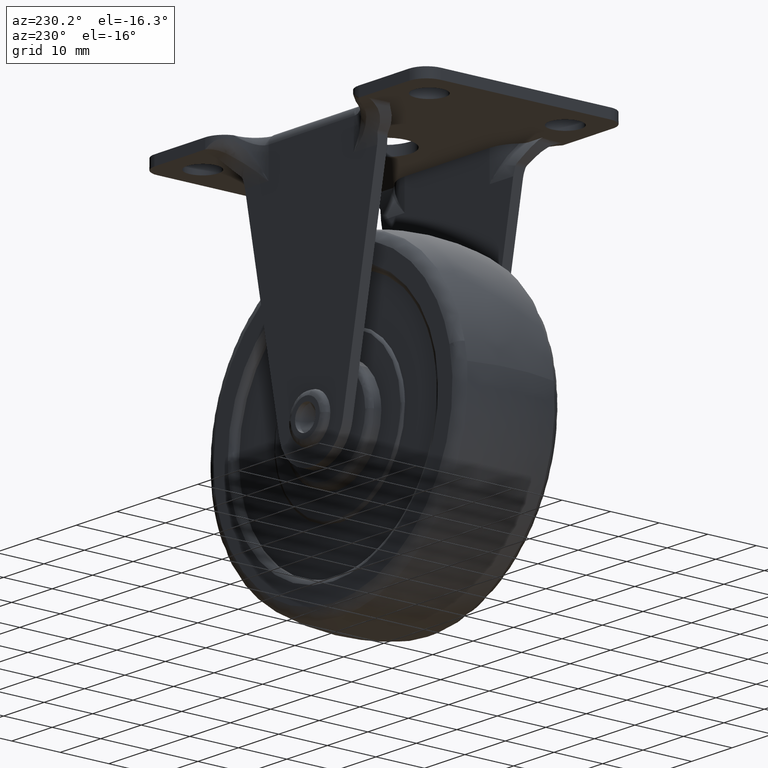
[diagram: clean part render]
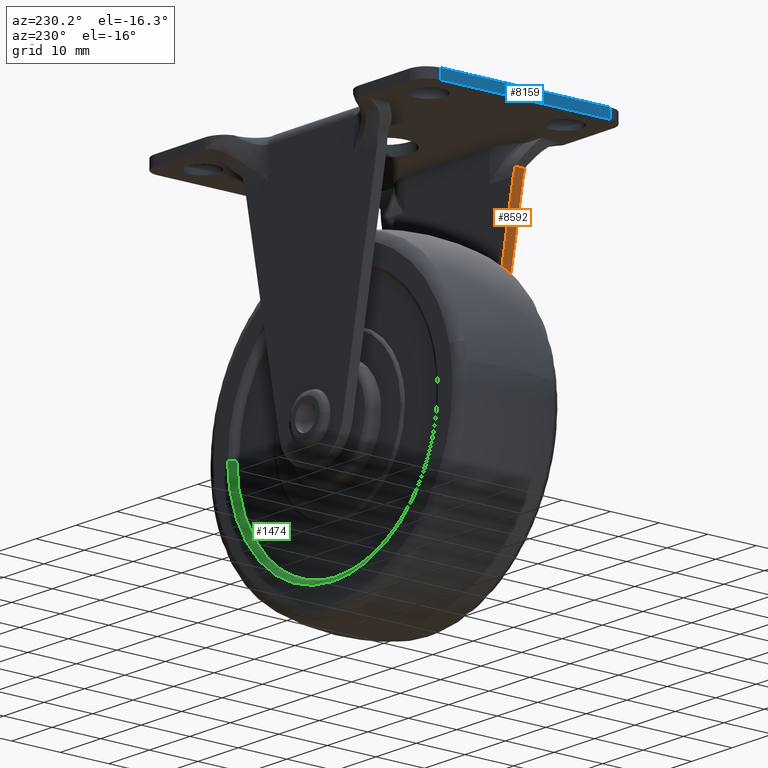
[diagram: same view with three faces highlighted in distinct colors, each labeled with its STEP entity id]
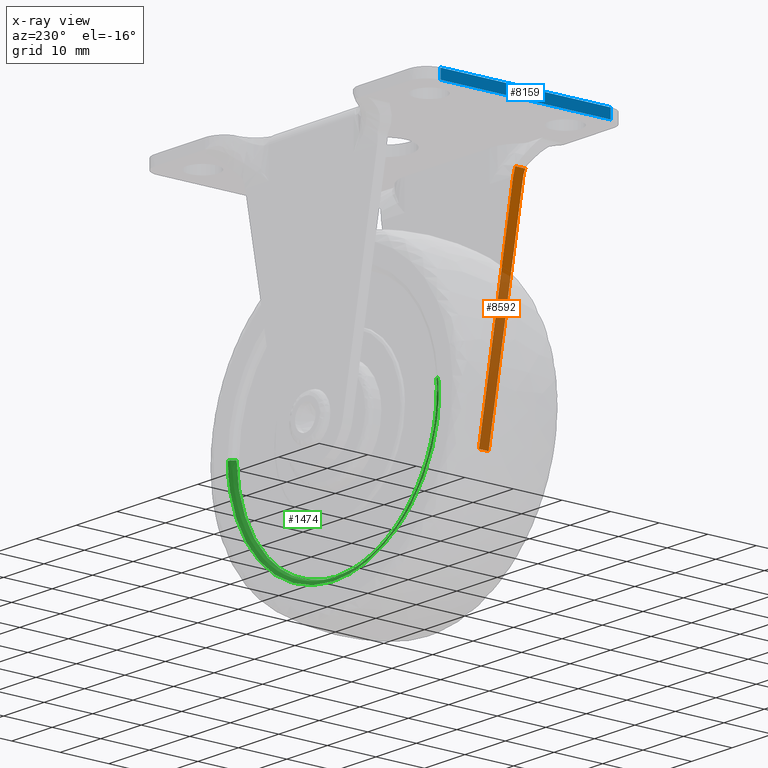
[diagram: x-ray of the same camera — body ghosted, the three highlighted faces saturated]
A machine part, auxiliary view with three faces highlighted in distinct colors.
The next image is the same camera in x-ray (body ghosted, the three faces saturated) — at least one of them is partly hidden behind the body in this view.
Their STEP definitions:

[orange] entity #8592 — the highlighted face is a freeform B-spline surface patch.
#5566=CARTESIAN_POINT('',(-16.650047701181901,-13.162633860607979,48.104896257429601));
#5567=VERTEX_POINT('',#5566);
#5578=CARTESIAN_POINT('',(-16.650047701181901,-15.218624038960201,48.104896257429601));
#5579=VERTEX_POINT('',#5578);
#5580=CARTESIAN_POINT('',(-16.650047701181901,-15.218624038960201,48.104896257429601));
#5581=CARTESIAN_POINT('',(-16.650047701181901,-13.162633860607979,48.104896257429601));
#5582=QUASI_UNIFORM_CURVE('',1,(#5580,#5581),.UNSPECIFIED.,.F.,.U.);
#5583=EDGE_CURVE('',#5579,#5567,#5582,.T.);
#6992=CARTESIAN_POINT('',(-16.333717015647000,-13.0,46.500000000000000));
#6993=VERTEX_POINT('',#6992);
#6994=CARTESIAN_POINT('',(-7.848986975766269,-13.0,3.452937152455845));
#6995=VERTEX_POINT('',#6994);
#6996=CARTESIAN_POINT('',(-16.333717015647000,-13.0,46.500000000000000));
#6997=CARTESIAN_POINT('',(-7.848986975766269,-13.0,3.452937152455845));
#6998=QUASI_UNIFORM_CURVE('',1,(#6996,#6997),.UNSPECIFIED.,.F.,.U.);
#6999=EDGE_CURVE('',#6993,#6995,#6998,.T.);
#7310=CARTESIAN_POINT('',(-16.650047701181901,-13.162633860607979,48.104896257429601));
#7311=CARTESIAN_POINT('',(-16.545989996615571,-13.054506272792141,47.576961952438367));
#7312=CARTESIAN_POINT('',(-16.439854725639080,-12.999952872504190,47.038487163363172));
#7313=CARTESIAN_POINT('',(-16.333717015647000,-13.0,46.500000000000000));
#7314=B_SPLINE_CURVE_WITH_KNOTS('',3,(#7310,#7311,#7312,#7313),.UNSPECIFIED.,.F.,.U.,(4,4),(7.088654E-010,1.646544176419899),.UNSPECIFIED.);
#7315=EDGE_CURVE('',#5567,#6993,#7314,.T.);
#7836=CARTESIAN_POINT('',(-16.333717015647000,-15.0,46.500000000000000));
#7837=VERTEX_POINT('',#7836);
#7843=CARTESIAN_POINT('',(-7.848986975766269,-15.0,3.452937152455845));
#7844=VERTEX_POINT('',#7843);
#7845=CARTESIAN_POINT('',(-16.333717015647000,-15.0,46.500000000000000));
#7846=CARTESIAN_POINT('',(-7.848986975766269,-15.0,3.452937152455845));
#7847=QUASI_UNIFORM_CURVE('',1,(#7845,#7846),.UNSPECIFIED.,.F.,.U.);
#7848=EDGE_CURVE('',#7837,#7844,#7847,.T.);
#8454=CARTESIAN_POINT('',(-16.650047701181901,-15.218624038960201,48.104896257429601));
#8455=CARTESIAN_POINT('',(-16.547102324944941,-15.073590418378410,47.582605323930657));
#8456=CARTESIAN_POINT('',(-16.440414172680221,-14.999877540545540,47.041325504705398));
#8457=CARTESIAN_POINT('',(-16.333717015647000,-15.0,46.500000000000000));
#8458=B_SPLINE_CURVE_WITH_KNOTS('',3,(#8454,#8455,#8456,#8457),.UNSPECIFIED.,.F.,.U.,(4,4),(1.959345E-009,1.655192922873177),.UNSPECIFIED.);
#8459=EDGE_CURVE('',#5579,#7837,#8458,.T.);
#8575=CARTESIAN_POINT('',(-17.089660612597282,-15.329444388713560,50.335261974417413));
#8576=CARTESIAN_POINT('',(-7.409376657305717,-15.329444388713560,1.222570094929076));
#8577=CARTESIAN_POINT('',(-17.089660612597282,-12.889179670082680,50.335261974417413));
#8578=CARTESIAN_POINT('',(-7.409376657305717,-12.889179670082680,1.222570094929076));
#8579=B_SPLINE_SURFACE_WITH_KNOTS('',1,1,((#8575,#8577),(#8576,#8578)),.UNSPECIFIED.,.F.,.F.,.U.,(2,2),(2,2),(0.0,50.057610820979413),(0.0,2.440264718630877),.UNSPECIFIED.);
#8580=ORIENTED_EDGE('',*,*,#8459,.F.);
#8581=ORIENTED_EDGE('',*,*,#5583,.T.);
#8582=ORIENTED_EDGE('',*,*,#7315,.T.);
#8583=ORIENTED_EDGE('',*,*,#6999,.T.);
#8584=CARTESIAN_POINT('',(-7.848986975766269,-13.0,3.452937152455845));
#8585=CARTESIAN_POINT('',(-7.848986975766269,-15.0,3.452937152455845));
#8586=QUASI_UNIFORM_CURVE('',1,(#8584,#8585),.UNSPECIFIED.,.F.,.U.);
#8587=EDGE_CURVE('',#6995,#7844,#8586,.T.);
#8588=ORIENTED_EDGE('',*,*,#8587,.T.);
#8589=ORIENTED_EDGE('',*,*,#7848,.F.);
#8590=EDGE_LOOP('',(#8580,#8581,#8582,#8583,#8588,#8589));
#8591=FACE_OUTER_BOUND('',#8590,.T.);
#8592=ADVANCED_FACE('',(#8591),#8579,.F.);

[blue] entity #8159 — the highlighted face is a freeform B-spline surface patch.
#7678=CARTESIAN_POINT('',(-35.0,-17.499998778269600,52.500000000000000));
#7679=VERTEX_POINT('',#7678);
#7693=CARTESIAN_POINT('',(-35.0,17.500000000000000,52.500000000000000));
#7694=VERTEX_POINT('',#7693);
#7695=CARTESIAN_POINT('',(-35.0,17.500000000000000,52.500000000000000));
#7696=CARTESIAN_POINT('',(-35.0,-17.499998778269600,52.500000000000000));
#7697=QUASI_UNIFORM_CURVE('',1,(#7695,#7696),.UNSPECIFIED.,.F.,.U.);
#7698=EDGE_CURVE('',#7694,#7679,#7697,.T.);
#7956=CARTESIAN_POINT('',(-35.0,17.500000000000000,54.500000000000000));
#7957=VERTEX_POINT('',#7956);
#7958=CARTESIAN_POINT('',(-35.0,17.500000000000000,52.500000000000000));
#7959=CARTESIAN_POINT('',(-35.0,17.500000000000000,54.500000000000000));
#7960=QUASI_UNIFORM_CURVE('',1,(#7958,#7959),.UNSPECIFIED.,.F.,.U.);
#7961=EDGE_CURVE('',#7694,#7957,#7960,.T.);
#8009=CARTESIAN_POINT('',(-35.0,-17.499998778269600,54.500000000000000));
#8010=VERTEX_POINT('',#8009);
#8024=CARTESIAN_POINT('',(-35.0,-17.499998778269600,52.500000000000000));
#8025=CARTESIAN_POINT('',(-35.0,-17.499998778269600,54.500000000000000));
#8026=QUASI_UNIFORM_CURVE('',1,(#8024,#8025),.UNSPECIFIED.,.F.,.U.);
#8027=EDGE_CURVE('',#7679,#8010,#8026,.T.);
#8144=CARTESIAN_POINT('',(-35.0,-19.248247992297479,54.599899996123632));
#8145=CARTESIAN_POINT('',(-35.0,-19.248247992297479,52.400099950232210));
#8146=CARTESIAN_POINT('',(-35.0,19.248250778649759,54.599899996123632));
#8147=CARTESIAN_POINT('',(-35.0,19.248250778649759,52.400099950232210));
#8148=B_SPLINE_SURFACE_WITH_KNOTS('',1,1,((#8144,#8146),(#8145,#8147)),.UNSPECIFIED.,.F.,.F.,.U.,(2,2),(2,2),(0.0,2.199800045891415),(0.0,38.496498770947227),.UNSPECIFIED.);
#8149=ORIENTED_EDGE('',*,*,#7961,.F.);
#8150=ORIENTED_EDGE('',*,*,#7698,.T.);
#8151=ORIENTED_EDGE('',*,*,#8027,.T.);
#8152=CARTESIAN_POINT('',(-35.0,-17.499998778269600,54.500000000000000));
#8153=CARTESIAN_POINT('',(-35.0,17.500000000000000,54.500000000000000));
#8154=QUASI_UNIFORM_CURVE('',1,(#8152,#8153),.UNSPECIFIED.,.F.,.U.);
#8155=EDGE_CURVE('',#8010,#7957,#8154,.T.);
#8156=ORIENTED_EDGE('',*,*,#8155,.T.);
#8157=EDGE_LOOP('',(#8149,#8150,#8151,#8156));
#8158=FACE_OUTER_BOUND('',#8157,.T.);
#8159=ADVANCED_FACE('',(#8158),#8148,.F.);

[green] entity #1474 — the highlighted face is a freeform B-spline surface patch.
#616=CARTESIAN_POINT('',(-18.134359252486359,9.499999999981336,-17.208864416391979));
#617=VERTEX_POINT('',#616);
#623=CARTESIAN_POINT('',(-24.939141846008759,9.500000001607054,1.743331289415316));
#624=VERTEX_POINT('',#623);
#625=CARTESIAN_POINT('',(-18.134359252486359,9.499999999981336,-17.208864416391979));
#626=CARTESIAN_POINT('',(-19.211893732240579,9.500000000048715,-16.073627218171101));
#627=CARTESIAN_POINT('',(-20.751006464381650,9.500000000179618,-14.111630509111230));
#628=CARTESIAN_POINT('',(-22.619054178676059,9.500000000431117,-10.821134957323279));
#629=CARTESIAN_POINT('',(-23.875173601027910,9.500000000691955,-7.708687782114497));
#630=CARTESIAN_POINT('',(-24.690870477454109,9.500000000997957,-4.343939892635995));
#631=CARTESIAN_POINT('',(-25.029880141593249,9.500000001300625,-1.226016117503633));
#632=CARTESIAN_POINT('',(-25.006911240049131,9.500000001505208,0.774205793159202));
#633=CARTESIAN_POINT('',(-24.939141846008759,9.500000001607054,1.743331289415316));
#634=B_SPLINE_CURVE_WITH_KNOTS('',3,(#625,#626,#627,#628,#629,#630,#631,#632,#633),.UNSPECIFIED.,.F.,.U.,(4,1,1,1,1,1,4),(0.000000011352412,4.695560054514894,7.448141071489021,11.334109115823020,14.734349058290030,17.810760641671319,20.725239151717901),.UNSPECIFIED.);
#635=EDGE_CURVE('',#617,#624,#634,.T.);
#656=CARTESIAN_POINT('',(24.998026105094819,9.500000001612586,-0.314150997129678));
#657=VERTEX_POINT('',#656);
#676=CARTESIAN_POINT('',(11.121229749398090,9.500000000170488,-22.390137312238849));
#677=VERTEX_POINT('',#676);
#678=CARTESIAN_POINT('',(24.998026105094819,9.500000001612586,-0.314150997129678));
#679=CARTESIAN_POINT('',(24.981948035354950,9.500000001528640,-1.599860697750656));
#680=CARTESIAN_POINT('',(24.789239542435631,9.500000001388699,-3.740597272207138));
#681=CARTESIAN_POINT('',(24.084410270561040,9.500000001181247,-6.917904327151931));
#682=CARTESIAN_POINT('',(22.950957383175620,9.500000000969274,-10.162003443871020));
#683=CARTESIAN_POINT('',(21.143880986565350,9.500000000748203,-13.546232417763839));
#684=CARTESIAN_POINT('',(18.618394103106350,9.500000000532692,-16.845434833896089));
#685=CARTESIAN_POINT('',(15.386434070034630,9.500000000333408,-19.897358048444111));
#686=CARTESIAN_POINT('',(12.688783468483489,9.500000000221283,-21.611821927216191));
#687=CARTESIAN_POINT('',(11.121229749398090,9.500000000170488,-22.390137312238849));
#688=B_SPLINE_CURVE_WITH_KNOTS('',3,(#678,#679,#680,#681,#682,#683,#684,#685,#686,#687),.UNSPECIFIED.,.F.,.U.,(4,1,1,1,1,1,1,4),(0.000000020575506,3.857419788851814,6.429050984079588,9.750731357295617,14.143900370454610,17.894191983729389,22.180236957997980,27.430623277960649),.UNSPECIFIED.);
#689=EDGE_CURVE('',#657,#677,#688,.T.);
#725=CARTESIAN_POINT('',(0.0,9.500000000000000,-25.0));
#726=VERTEX_POINT('',#725);
#727=CARTESIAN_POINT('',(11.121229749398090,9.500000000170488,-22.390137312238849));
#728=CARTESIAN_POINT('',(9.669776310968491,9.500000000123361,-23.111321589800649));
#729=CARTESIAN_POINT('',(7.358729353547121,9.500000000065962,-23.990757861572430));
#730=CARTESIAN_POINT('',(3.601572080754870,9.500000000012028,-24.815518237641822));
#731=CARTESIAN_POINT('',(1.380625571481317,9.500000000000009,-25.000111137818639));
#732=CARTESIAN_POINT('',(0.0,9.500000000000000,-25.0));
#733=B_SPLINE_CURVE_WITH_KNOTS('',3,(#727,#728,#729,#730,#731,#732),.UNSPECIFIED.,.F.,.U.,(4,1,1,4),(2.631536E-009,4.862189545018275,7.383310402887724,11.525171538352319),.UNSPECIFIED.);
#734=EDGE_CURVE('',#677,#726,#733,.T.);
#736=CARTESIAN_POINT('',(0.0,9.500000000000000,-25.0));
#737=CARTESIAN_POINT('',(-1.003905038754733,9.499999999955037,-25.000027701660571));
#738=CARTESIAN_POINT('',(-3.064545493338339,9.499999999875376,-24.875718967849739));
#739=CARTESIAN_POINT('',(-6.135561942037000,9.499999999796025,-24.304630298832691));
#740=CARTESIAN_POINT('',(-8.857621276625979,9.499999999763086,-23.430596540271690));
#741=CARTESIAN_POINT('',(-11.273890837580270,9.499999999764365,-22.355972539676049));
#742=CARTESIAN_POINT('',(-13.301408193904290,9.499999999789962,-21.212320755145949));
#743=CARTESIAN_POINT('',(-15.687896748471459,9.499999999852491,-19.549057842974339));
#744=CARTESIAN_POINT('',(-17.225154363619730,9.499999999924656,-18.167099281221429));
#745=CARTESIAN_POINT('',(-18.134359252486359,9.499999999981336,-17.208864416391979));
#746=B_SPLINE_CURVE_WITH_KNOTS('',3,(#736,#737,#738,#739,#740,#741,#742,#743,#744,#745),.UNSPECIFIED.,.F.,.U.,(4,1,1,1,1,1,1,4),(0.000000011258738,3.011716102311475,6.181953994211661,9.352185592104464,11.571338551783921,14.107532523800950,16.326697241959440,20.289486506754670),.UNSPECIFIED.);
#747=EDGE_CURVE('',#726,#617,#746,.T.);
#1372=CARTESIAN_POINT('',(-24.941556687253431,9.430462845928645,1.743498711809960));
#1373=CARTESIAN_POINT('',(-24.991454823176980,9.430462845928647,1.029682763856867));
#1374=CARTESIAN_POINT('',(-25.000446551613479,9.430462845928647,0.314181414912966));
#1375=CARTESIAN_POINT('',(-25.314627966526448,9.430462845928647,-24.686265136700523));
#1376=CARTESIAN_POINT('',(-0.314181414912967,9.430462845928647,-25.000446551613479));
#1377=CARTESIAN_POINT('',(24.686265136700523,9.430462845928647,-25.314627966526448));
#1378=CARTESIAN_POINT('',(25.000446551613479,9.430462845928647,-0.314181414912967));
#1379=CARTESIAN_POINT('',(-24.861793420614678,10.577538274907001,1.737922991161156));
#1380=CARTESIAN_POINT('',(-24.911531981962753,10.577538274907003,1.026389831427801));
#1381=CARTESIAN_POINT('',(-24.920494954791014,10.577538274907004,0.313176660627383));
#1382=CARTESIAN_POINT('',(-25.233671615418380,10.577538274907001,-24.607318294163633));
#1383=CARTESIAN_POINT('',(-0.313176660627383,10.577538274907004,-24.920494954791014));
#1384=CARTESIAN_POINT('',(24.607318294163633,10.577538274907001,-25.233671615418380));
#1385=CARTESIAN_POINT('',(24.920494954791014,10.577538274907004,-0.313176660627383));
#1386=CARTESIAN_POINT('',(-26.006076424068308,10.497579297657866,1.817912222285892));
#1387=CARTESIAN_POINT('',(-26.058104240636379,10.497579297657863,1.073630206212937));
#1388=CARTESIAN_POINT('',(-26.067479741124831,10.497579297657868,0.327590855282268));
#1389=CARTESIAN_POINT('',(-26.395070596407102,10.497579297657870,-25.739888885842571));
#1390=CARTESIAN_POINT('',(-0.327590855282268,10.497579297657868,-26.067479741124831));
#1391=CARTESIAN_POINT('',(25.739888885842571,10.497579297657870,-26.395070596407102));
#1392=CARTESIAN_POINT('',(26.067479741124831,10.497579297657868,-0.327590855282268));
#1400=(BOUNDED_SURFACE()B_SPLINE_SURFACE(2,2,((#1372,#1379,#1386),(#1373,#1380,#1387),(#1374,#1381,#1388),(#1375,#1382,#1389),(#1376,#1383,#1390),(#1377,#1384,#1391),(#1378,#1385,#1392)),.UNSPECIFIED.,.F.,.F.,.U.)B_SPLINE_SURFACE_WITH_KNOTS((3,2,2,3),(3,3),(0.0,1.727735350457453,44.921160304353798,88.114585258250145),(0.0,1.822375144026936),.UNSPECIFIED.)GEOMETRIC_REPRESENTATION_ITEM()RATIONAL_B_SPLINE_SURFACE(((0.889999318199879,0.584039559398450,0.889999695473547),(0.899812889425074,0.590479467494200,0.899813270858747),(0.910479813785262,0.597479367017788,0.910480199740680),(0.643806450461024,0.422481712037324,0.643806723372717),(0.910479813785262,0.597479367017788,0.910480199740680),(0.643806450461024,0.422481712037324,0.643806723372717),(0.910479813785262,0.597479367017788,0.910480199740680)))REPRESENTATION_ITEM('')SURFACE());
#1401=CARTESIAN_POINT('',(-25.936707516989252,10.500000000000000,1.813064540915609));
#1402=VERTEX_POINT('',#1401);
#1403=CARTESIAN_POINT('',(0.0,10.500000000000000,-26.0));
#1404=VERTEX_POINT('',#1403);
#1405=CARTESIAN_POINT('',(-25.936707516989252,10.500000000000000,1.813064540915609));
#1406=CARTESIAN_POINT('',(-25.998683409705460,10.499999999999989,0.926584165847273));
#1407=CARTESIAN_POINT('',(-26.035776405820052,10.500000000000011,-1.075162839702633));
#1408=CARTESIAN_POINT('',(-25.750598495561650,10.500000000000000,-4.011044135621342));
#1409=CARTESIAN_POINT('',(-25.025450061741878,10.500000000000000,-7.325683760533091));
#1410=CARTESIAN_POINT('',(-24.003142356995070,10.500000000000011,-10.154703263884560));
#1411=CARTESIAN_POINT('',(-22.631199695289698,10.499999999999980,-12.887009978266200));
#1412=CARTESIAN_POINT('',(-21.321292441496190,10.500000000000011,-14.954885920993840));
#1413=CARTESIAN_POINT('',(-19.574177356780169,10.499999999999989,-17.187602261722969));
#1414=CARTESIAN_POINT('',(-17.443927086430620,10.500000000000011,-19.385738972988680));
#1415=CARTESIAN_POINT('',(-14.949402640305159,10.500000000000000,-21.347787405464700));
#1416=CARTESIAN_POINT('',(-12.006595376827130,10.500000000000041,-23.143679328358640));
#1417=CARTESIAN_POINT('',(-8.546682115665192,10.499999999999980,-24.687960842604870));
#1418=CARTESIAN_POINT('',(-4.332158148887607,10.500000000000000,-25.763708717676561));
#1419=CARTESIAN_POINT('',(-1.388518288206929,10.499999999999989,-26.000064624998149));
#1420=CARTESIAN_POINT('',(0.0,10.500000000000000,-26.0));
#1421=B_SPLINE_CURVE_WITH_KNOTS('',3,(#1405,#1406,#1407,#1408,#1409,#1410,#1411,#1412,#1413,#1414,#1415,#1416,#1417,#1418,#1419,#1420),.UNSPECIFIED.,.F.,.U.,(4,1,1,1,1,1,1,1,1,1,1,1,1,4),(0.000000035168448,2.665938589889265,5.998386671522418,8.830976579176500,12.829926291727340,14.996011895513540,17.995215169451800,20.161303810555211,23.493745422752390,27.159424583644451,29.658764480288440,33.824332078671290,38.489757817724808,42.655314659414053),.UNSPECIFIED.);
#1422=EDGE_CURVE('',#1402,#1404,#1421,.T.);
#1423=ORIENTED_EDGE('',*,*,#1422,.F.);
#1424=CARTESIAN_POINT('',(-24.939141846008759,9.500000001607054,1.743331289415316));
#1425=CARTESIAN_POINT('',(-24.939034417391099,9.622733166089251,1.743323779783986));
#1426=CARTESIAN_POINT('',(-24.977201148860850,9.827181246824845,1.745991764817027));
#1427=CARTESIAN_POINT('',(-25.132219954439531,10.118030808124839,1.756828109397825));
#1428=CARTESIAN_POINT('',(-25.322293170104501,10.303948966063480,1.770114877113621));
#1429=CARTESIAN_POINT('',(-25.602219378714189,10.458344353280321,1.789682676285199));
#1430=CARTESIAN_POINT('',(-25.797923916172859,10.500194464288571,1.803363092654643));
#1431=CARTESIAN_POINT('',(-25.936707516989252,10.500000000000000,1.813064540915609));
#1432=B_SPLINE_CURVE_WITH_KNOTS('',3,(#1424,#1425,#1426,#1427,#1428,#1429,#1430,#1431),.UNSPECIFIED.,.F.,.U.,(4,1,1,1,1,4),(0.000000217527612,0.368162749244337,0.613628828332955,0.981768862771220,1.153580511909166,1.570835742873343),.UNSPECIFIED.);
#1433=EDGE_CURVE('',#624,#1402,#1432,.T.);
#1434=ORIENTED_EDGE('',*,*,#1433,.F.);
#1435=ORIENTED_EDGE('',*,*,#635,.F.);
#1436=ORIENTED_EDGE('',*,*,#747,.F.);
#1437=ORIENTED_EDGE('',*,*,#734,.F.);
#1438=ORIENTED_EDGE('',*,*,#689,.F.);
#1439=CARTESIAN_POINT('',(25.997947148286791,10.500000000000000,-0.326717037041191));
#1440=VERTEX_POINT('',#1439);
#1441=CARTESIAN_POINT('',(24.998026105094819,9.500000001612586,-0.314150997129678));
#1442=CARTESIAN_POINT('',(24.997919585202151,9.622730011516479,-0.314149658485125));
#1443=CARTESIAN_POINT('',(25.039221509882541,9.843547419060732,-0.314668701092796));
#1444=CARTESIAN_POINT('',(25.214429106528570,10.153043775847941,-0.316870540589109));
#1445=CARTESIAN_POINT('',(25.454356959499531,10.360034134202360,-0.319885721636009));
#1446=CARTESIAN_POINT('',(25.736192305564838,10.476636996812770,-0.323427555502617));
#1447=CARTESIAN_POINT('',(25.907959071082800,10.500030283886190,-0.325586153976439));
#1448=CARTESIAN_POINT('',(25.997947148286791,10.500000000000000,-0.326717037041191));
#1449=B_SPLINE_CURVE_WITH_KNOTS('',3,(#1441,#1442,#1443,#1444,#1445,#1446,#1447,#1448),.UNSPECIFIED.,.F.,.U.,(4,1,1,1,1,4),(0.000000217528337,0.368162749380453,0.662710982040075,1.055400912081498,1.300852811865112,1.570835743453171),.UNSPECIFIED.);
#1450=EDGE_CURVE('',#657,#1440,#1449,.T.);
#1451=ORIENTED_EDGE('',*,*,#1450,.T.);
#1452=CARTESIAN_POINT('',(0.0,10.500000000000000,-26.0));
#1453=CARTESIAN_POINT('',(0.844030820244904,10.500000000000020,-26.000003193886599));
#1454=CARTESIAN_POINT('',(2.795878028587266,10.500000000000011,-25.904909722779308));
#1455=CARTESIAN_POINT('',(5.613283183335864,10.499999999999959,-25.446476880337741));
#1456=CARTESIAN_POINT('',(8.255418859893043,10.500000000000011,-24.695392325649902));
#1457=CARTESIAN_POINT('',(11.158420580761600,10.500000000000020,-23.565199856773269));
#1458=CARTESIAN_POINT('',(14.179988074019780,10.500000000000041,-21.918000249639270));
#1459=CARTESIAN_POINT('',(16.907265323001809,10.499999999999920,-19.825819983858139));
#1460=CARTESIAN_POINT('',(19.150348984008300,10.500000000000060,-17.664065969934718));
#1461=CARTESIAN_POINT('',(21.010948712637529,10.500000000000030,-15.429341613872429));
#1462=CARTESIAN_POINT('',(22.578025425754060,10.499999999999879,-12.981784315689270));
#1463=CARTESIAN_POINT('',(23.819236394113808,10.500000000000099,-10.532720914080080));
#1464=CARTESIAN_POINT('',(24.676101260267568,10.499999999999970,-8.314634165134569));
#1465=CARTESIAN_POINT('',(25.391036802463010,10.499999999999931,-5.773904428335352));
#1466=CARTESIAN_POINT('',(25.854471608801500,10.500000000000220,-3.226520432791874));
#1467=CARTESIAN_POINT('',(25.986030261891759,10.499999999999680,-1.276179624894874));
#1468=CARTESIAN_POINT('',(25.997947148286791,10.500000000000000,-0.326717037041191));
#1469=B_SPLINE_CURVE_WITH_KNOTS('',3,(#1452,#1453,#1454,#1455,#1456,#1457,#1458,#1459,#1460,#1461,#1462,#1463,#1464,#1465,#1466,#1467,#1468),.UNSPECIFIED.,.F.,.U.,(4,1,1,1,1,1,1,1,1,1,1,1,1,1,4),(0.000000035115022,2.532098623774154,5.855538861984165,8.545928948432628,10.761543310574030,15.192783001979141,18.832719968546161,21.048310349470221,24.529966451975870,27.536884078903711,29.752499493664331,32.759403280448332,34.658512075918431,37.665424732978991,40.514041401984223),.UNSPECIFIED.);
#1470=EDGE_CURVE('',#1404,#1440,#1469,.T.);
#1471=ORIENTED_EDGE('',*,*,#1470,.F.);
#1472=EDGE_LOOP('',(#1423,#1434,#1435,#1436,#1437,#1438,#1451,#1471));
#1473=FACE_OUTER_BOUND('',#1472,.T.);
#1474=ADVANCED_FACE('',(#1473),#1400,.T.);